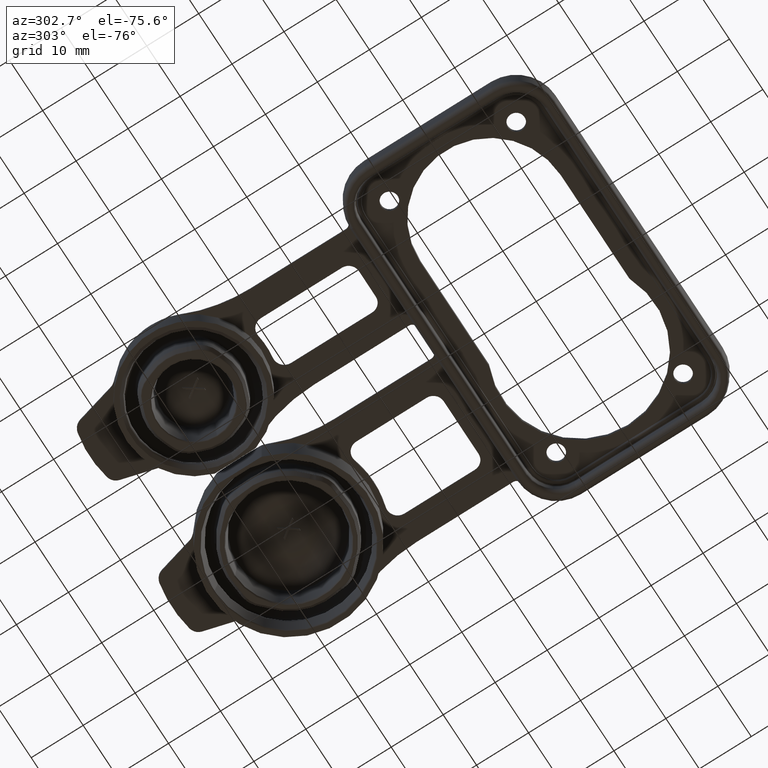
[diagram: clean part render]
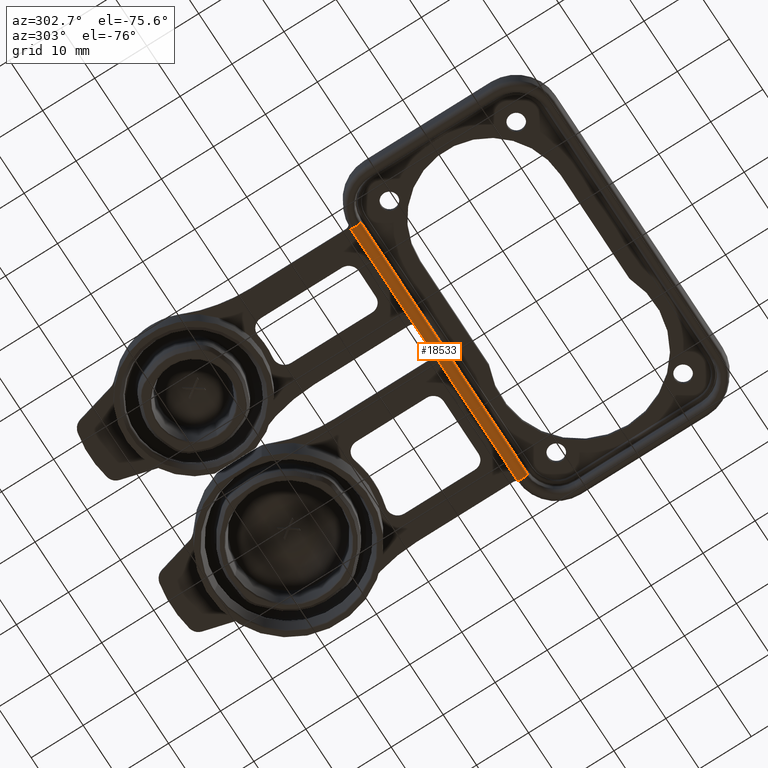
[diagram: same view with one face highlighted and labeled with its STEP entity id]
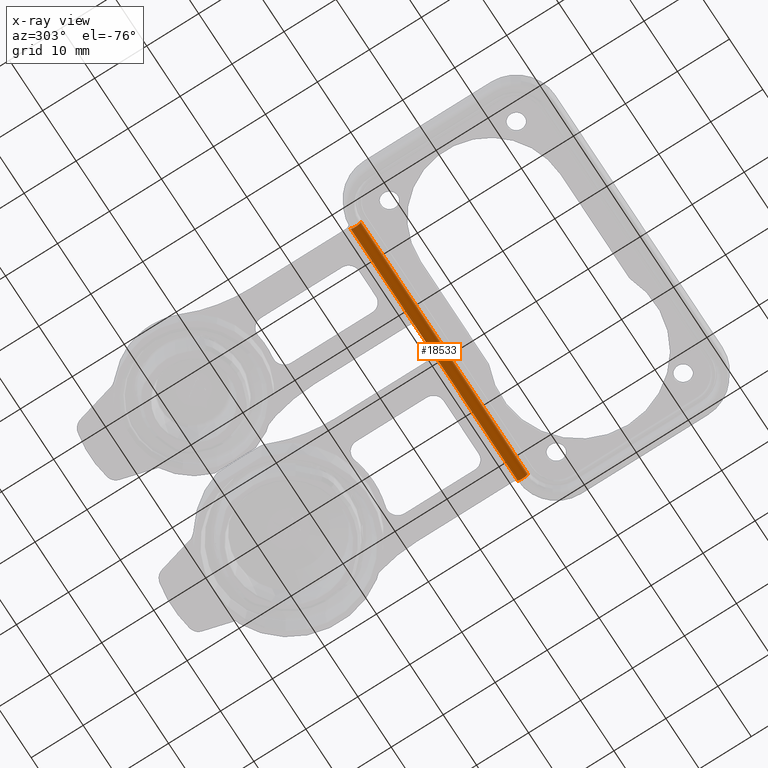
[diagram: x-ray of the same camera — body ghosted, the highlighted face saturated]
A machine part, auxiliary view. The second image highlights one B-rep face of the part: STEP entity #18533.
The next image is the same camera in x-ray: the body ghosted, the highlighted face saturated — about 0% of this face is hidden behind the body in this view.
In plain terms, the highlighted cylindrical surface (edge-blend (fillet) strip) has radius 1 mm, axis along (1, 0, 0).
Its self-contained STEP definition (entity closure, byte-faithful):
#167=DIRECTION('',(1.E0,0.E0,0.E0));
#168=VECTOR('',#167,5.E1);
#169=CARTESIAN_POINT('',(-2.5E1,1.77E1,-2.E0));
#170=LINE('',#169,#168);
#235=DIRECTION('',(-1.E0,0.E0,0.E0));
#236=VECTOR('',#235,5.E1);
#237=CARTESIAN_POINT('',(2.5E1,1.97E1,-2.E0));
#238=LINE('',#237,#236);
#7286=CARTESIAN_POINT('',(2.5E1,1.87E1,-2.E0));
#7287=DIRECTION('',(1.E0,0.E0,0.E0));
#7288=DIRECTION('',(0.E0,-1.E0,0.E0));
#7289=AXIS2_PLACEMENT_3D('',#7286,#7287,#7288);
#14212=CARTESIAN_POINT('',(-2.5E1,1.87E1,-2.E0));
#14213=DIRECTION('',(1.E0,0.E0,0.E0));
#14214=DIRECTION('',(0.E0,-1.E0,0.E0));
#14215=AXIS2_PLACEMENT_3D('',#14212,#14213,#14214);
#15073=CARTESIAN_POINT('',(2.5E1,1.97E1,-2.E0));
#15074=CARTESIAN_POINT('',(-2.5E1,1.97E1,-2.E0));
#15075=VERTEX_POINT('',#15073);
#15076=VERTEX_POINT('',#15074);
#15077=CARTESIAN_POINT('',(-2.5E1,1.77E1,-2.E0));
#15078=CARTESIAN_POINT('',(2.5E1,1.77E1,-2.E0));
#15079=VERTEX_POINT('',#15077);
#15080=VERTEX_POINT('',#15078);
#18519=CARTESIAN_POINT('',(-2.5E1,1.87E1,-2.E0));
#18520=DIRECTION('',(1.E0,0.E0,0.E0));
#18521=DIRECTION('',(0.E0,-1.E0,0.E0));
#18522=AXIS2_PLACEMENT_3D('',#18519,#18520,#18521);
#18523=CYLINDRICAL_SURFACE('',#18522,1.E0);
#18525=ORIENTED_EDGE('',*,*,#18524,.T.);
#18527=ORIENTED_EDGE('',*,*,#18526,.F.);
#18528=ORIENTED_EDGE('',*,*,#18509,.T.);
#18530=ORIENTED_EDGE('',*,*,#18529,.T.);
#18531=EDGE_LOOP('',(#18525,#18527,#18528,#18530));
#18532=FACE_OUTER_BOUND('',#18531,.F.);
#18533=ADVANCED_FACE('',(#18532),#18523,.T.);
#7290=CIRCLE('',#7289,1.E0);
#14216=CIRCLE('',#14215,1.E0);
#18509=EDGE_CURVE('',#15079,#15080,#170,.T.);
#18524=EDGE_CURVE('',#15075,#15076,#238,.T.);
#18526=EDGE_CURVE('',#15079,#15076,#14216,.T.);
#18529=EDGE_CURVE('',#15080,#15075,#7290,.T.);